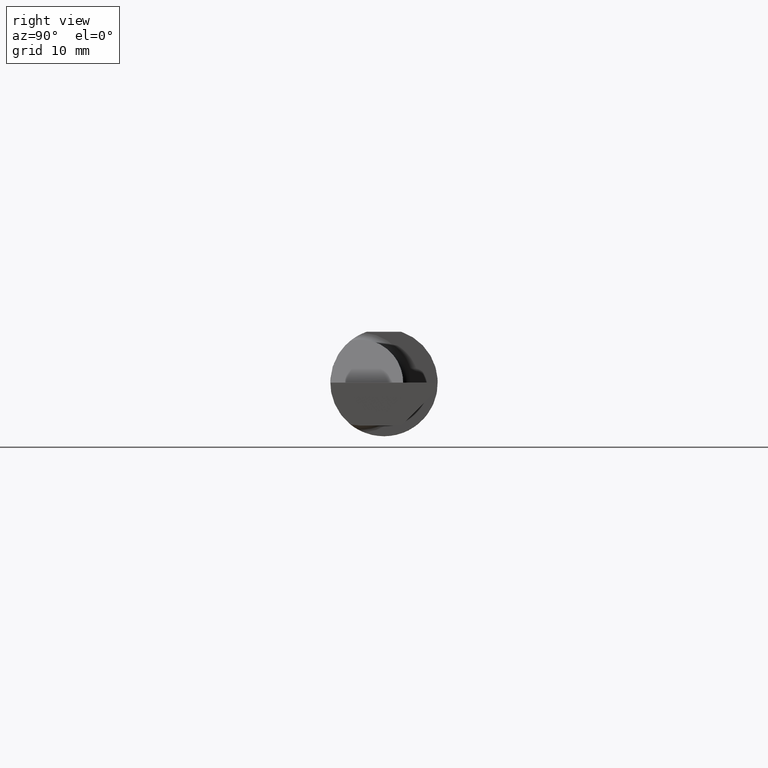
[diagram: clean part render]
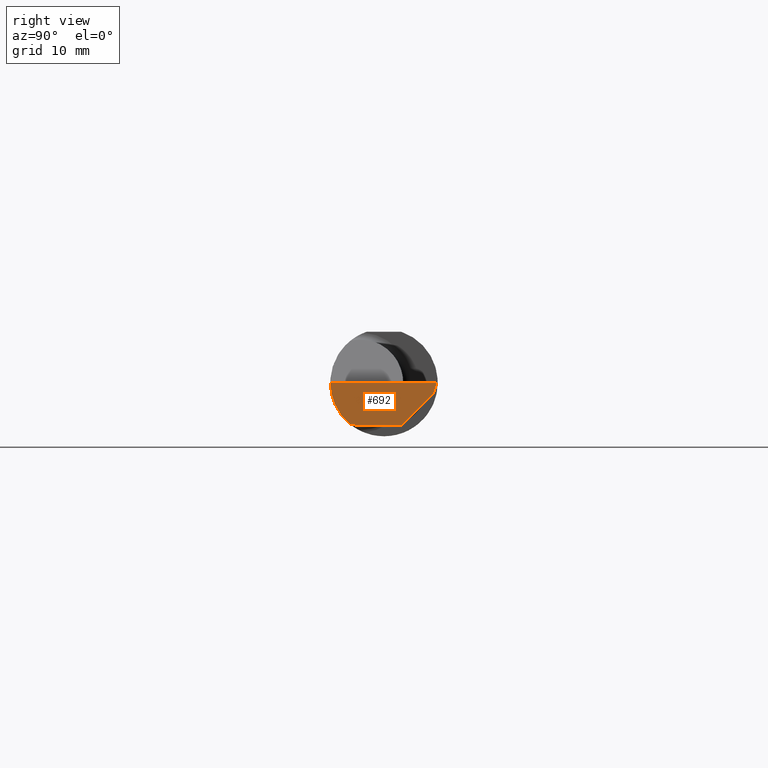
[diagram: same view with one face highlighted and labeled with its STEP entity id]
A machine part, right view. The second image highlights one B-rep face of the part: STEP entity #692.
In plain terms, the highlighted planar face has unit normal (-0.999, 0.0349, 0.0262).
Its self-contained STEP definition (entity closure, byte-faithful):
#5 = LINE ( 'NONE', #651, #782 ) ;
#17 = DIRECTION ( 'NONE',  ( -0.03489949670249478664, -0.9993908270190959842, 0.000000000000000000 ) ) ;
#39 = CARTESIAN_POINT ( 'NONE',  ( 2.500000000000000000, 0.1846500000000000363, 0.000000000000000000 ) ) ;
#89 = ORIENTED_EDGE ( 'NONE', *, *, #394, .F. ) ;
#163 = CARTESIAN_POINT ( 'NONE',  ( 2.485628535317038867, -0.1172600179964007477, -0.1461167706989302817 ) ) ;
#180 = ORIENTED_EDGE ( 'NONE', *, *, #644, .F. ) ;
#201 = ORIENTED_EDGE ( 'NONE', *, *, #254, .T. ) ;
#237 = CARTESIAN_POINT ( 'NONE',  ( 2.500000000000000000, 0.1846500000000000363, 0.000000000000000000 ) ) ;
#240 = CARTESIAN_POINT ( 'NONE',  ( 2.500000000000000000, 0.1846500000000000363, 0.000000000000000000 ) ) ;
#254 = EDGE_CURVE ( 'NONE', #353, #829, #482, .T. ) ;
#279 = ORIENTED_EDGE ( 'NONE', *, *, #657, .T. ) ;
#302 = CARTESIAN_POINT ( 'NONE',  ( 2.485949549028435790, -0.1061291577212409298, -0.1486999626928445783 ) ) ;
#353 = VERTEX_POINT ( 'NONE', #446 ) ;
#391 = CARTESIAN_POINT ( 'NONE',  ( 2.486311922989707490, -0.09477667630339417504, -0.1499999999999999944 ) ) ;
#394 = EDGE_CURVE ( 'NONE', #832, #829, #431, .T. ) ;
#409 =( BOUNDED_CURVE ( )  B_SPLINE_CURVE ( 3, ( #163, #586, #481, #488 ),
 .UNSPECIFIED., .F., .T. ) 
 B_SPLINE_CURVE_WITH_KNOTS ( ( 4, 4 ),
 ( 6.032366188922103412, 6.926893589830550368 ),
 .UNSPECIFIED. ) 
 CURVE ( )  GEOMETRIC_REPRESENTATION_ITEM ( )  RATIONAL_B_SPLINE_CURVE ( ( 1.000000000000000000, 0.9344226172588803170, 0.9344226172588803170, 1.000000000000000000 ) ) 
 REPRESENTATION_ITEM ( '' )  );
#427 = VERTEX_POINT ( 'NONE', #998 ) ;
#431 = LINE ( 'NONE', #857, #820 ) ;
#446 = CARTESIAN_POINT ( 'NONE',  ( 2.485628535317038867, -0.1172600179964007477, -0.1461167706989302817 ) ) ;
#481 = CARTESIAN_POINT ( 'NONE',  ( 2.485494735025390867, -0.1873500000000000443, -0.05781030015605120170 ) ) ;
#482 =( BOUNDED_CURVE ( )  B_SPLINE_CURVE ( 3, ( #649, #302, #391, #489 ),
 .UNSPECIFIED., .F., .T. ) 
 B_SPLINE_CURVE_WITH_KNOTS ( ( 4, 4 ),
 ( 0.6990500090944880007, 0.9270880441439325326 ),
 .UNSPECIFIED. ) 
 CURVE ( )  GEOMETRIC_REPRESENTATION_ITEM ( )  RATIONAL_B_SPLINE_CURVE ( ( 1.000000000000000000, 0.9956712472009929815, 0.9956712472009929815, 1.000000000000000000 ) ) 
 REPRESENTATION_ITEM ( '' )  );
#488 = CARTESIAN_POINT ( 'NONE',  ( 2.487009473749072441, -0.1873499999999999055, 0.000000000000000000 ) ) ;
#489 = CARTESIAN_POINT ( 'NONE',  ( 2.486710951318955587, -0.08334999999999997966, -0.1499999999999999944 ) ) ;
#494 = DIRECTION ( 'NONE',  ( -0.04317993108638582683, -0.7064472710512009757, -0.7064472710511987552 ) ) ;
#520 = DIRECTION ( 'NONE',  ( -0.03489949670249477970, -0.9993908270190959842, 0.000000000000000000 ) ) ;
#525 = PLANE ( 'NONE',  #577 ) ;
#567 = ORIENTED_EDGE ( 'NONE', *, *, #590, .F. ) ;
#574 = EDGE_CURVE ( 'NONE', #353, #427, #409, .T. ) ;
#577 = AXIS2_PLACEMENT_3D ( 'NONE', #39, #681, #520 ) ;
#586 = CARTESIAN_POINT ( 'NONE',  ( 2.485002117657001186, -0.1623470442677541481, -0.1099340280425338545 ) ) ;
#590 = EDGE_CURVE ( 'NONE', #989, #720, #837, .T. ) ;
#644 = EDGE_CURVE ( 'NONE', #720, #832, #5, .T. ) ;
#645 = VECTOR ( 'NONE', #17, 39.37007874015748854 ) ;
#649 = CARTESIAN_POINT ( 'NONE',  ( 2.485628535317038867, -0.1172600179964007477, -0.1461167706989302817 ) ) ;
#651 = CARTESIAN_POINT ( 'NONE',  ( 2.498202922559297878, 0.1662457073591344092, -0.04405734418401514862 ) ) ;
#657 = EDGE_CURVE ( 'NONE', #989, #427, #824, .T. ) ;
#664 = CARTESIAN_POINT ( 'NONE',  ( 2.499745275690704371, 0.1824457755323927455, -0.006783905356193825967 ) ) ;
#668 = CARTESIAN_POINT ( 'NONE',  ( 2.486710951318955587, -0.08334999999999997966, -0.1499999999999999944 ) ) ;
#681 = DIRECTION ( 'NONE',  ( -0.9990483607430193924, 0.03488753751660920999, 0.02617694830787320806 ) ) ;
#692 = ADVANCED_FACE ( 'NONE', ( #761 ), #525, .F. ) ;
#720 = VERTEX_POINT ( 'NONE', #990 ) ;
#753 = EDGE_LOOP ( 'NONE', ( #201, #89, #180, #567, #279, #840 ) ) ;
#761 = FACE_OUTER_BOUND ( 'NONE', #753, .T. ) ;
#762 = DIRECTION ( 'NONE',  ( -0.03489949670249477970, -0.9993908270190959842, 0.000000000000000000 ) ) ;
#782 = VECTOR ( 'NONE', #494, 39.37007874015748143 ) ;
#820 = VECTOR ( 'NONE', #762, 39.37007874015748854 ) ;
#822 = CARTESIAN_POINT ( 'NONE',  ( 2.491727426418679059, 0.06030305154314920951, -0.1499999999999999944 ) ) ;
#824 = LINE ( 'NONE', #240, #645 ) ;
#829 = VERTEX_POINT ( 'NONE', #668 ) ;
#832 = VERTEX_POINT ( 'NONE', #822 ) ;
#837 = LINE ( 'NONE', #664, #1027 ) ;
#840 = ORIENTED_EDGE ( 'NONE', *, *, #574, .F. ) ;
#857 = CARTESIAN_POINT ( 'NONE',  ( 2.493549313964080305, 0.1124750847462631514, -0.1499999999999999944 ) ) ;
#911 = DIRECTION ( 'NONE',  ( -0.03568783471266506746, -0.3088201463263676727, -0.9504506802967118695 ) ) ;
#989 = VERTEX_POINT ( 'NONE', #237 ) ;
#990 = CARTESIAN_POINT ( 'NONE',  ( 2.498573163503173156, 0.1723030515431495657, -0.03799999999999999212 ) ) ;
#998 = CARTESIAN_POINT ( 'NONE',  ( 2.487009473749072441, -0.1873499999999999055, 0.000000000000000000 ) ) ;
#1027 = VECTOR ( 'NONE', #911, 39.37007874015748143 ) ;